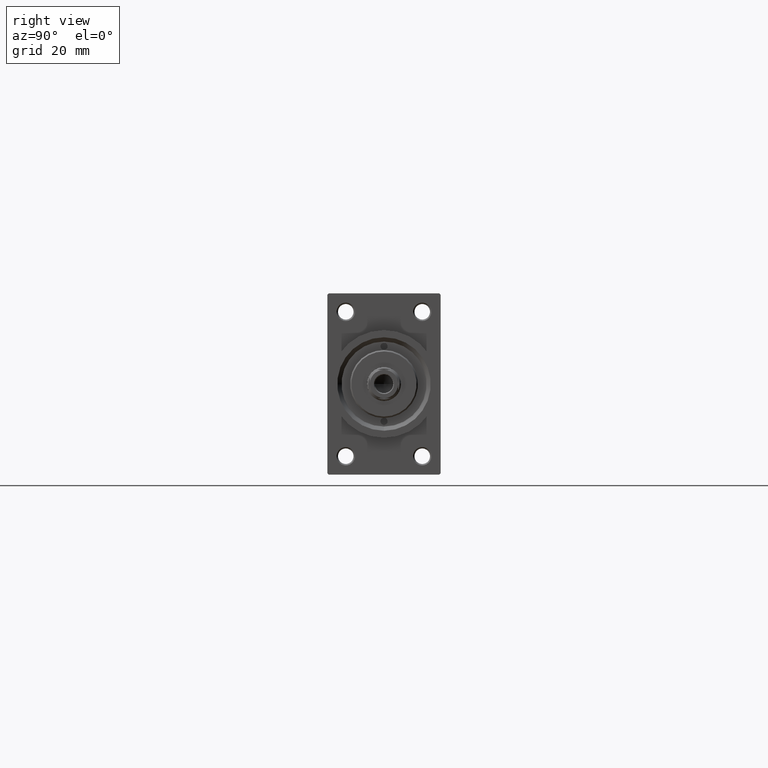
[diagram: clean part render]
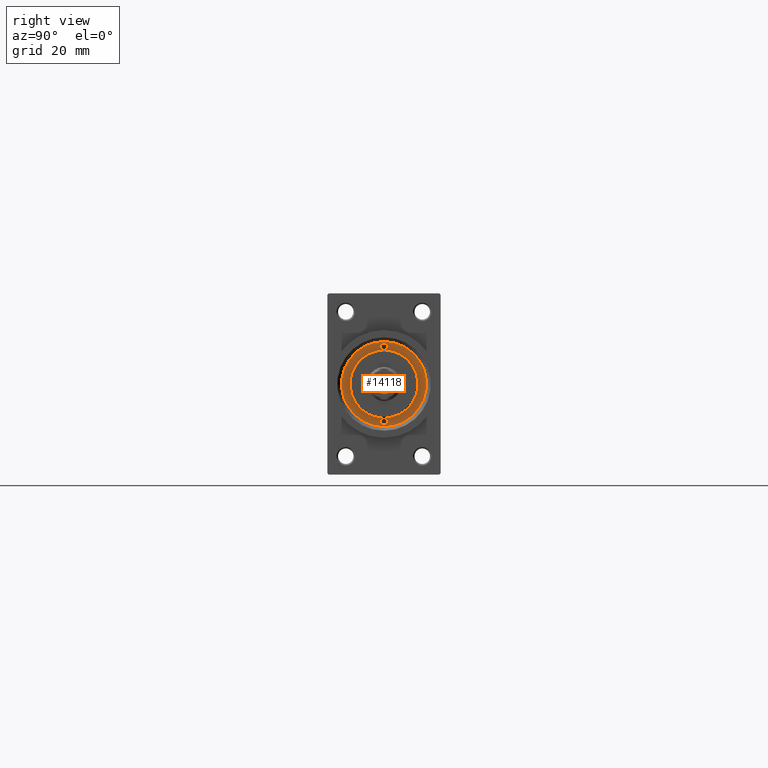
[diagram: same view with one face highlighted and labeled with its STEP entity id]
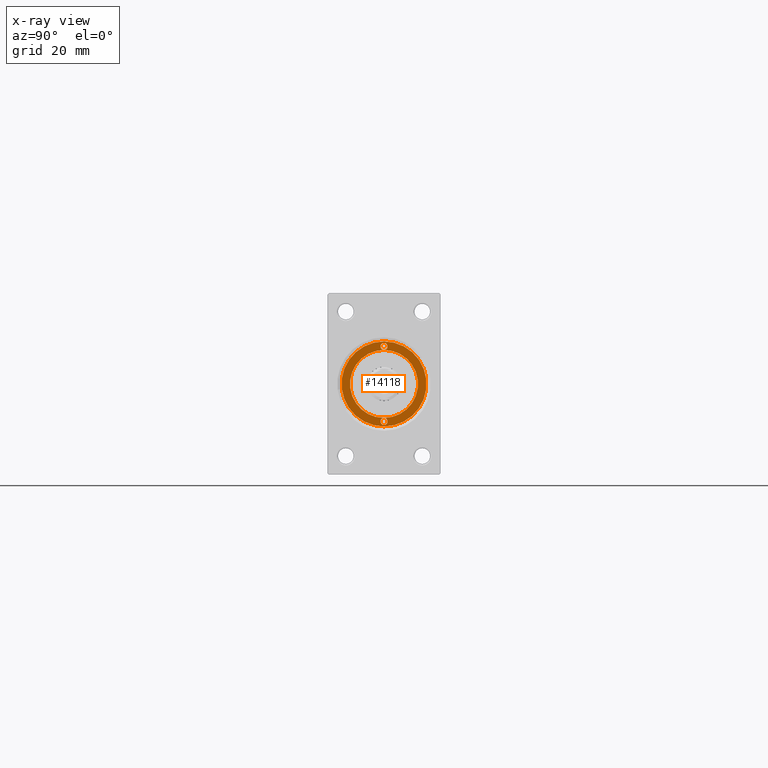
[diagram: x-ray of the same camera — body ghosted, the highlighted face saturated]
A machine part, right view. The second image highlights one B-rep face of the part: STEP entity #14118.
The next image is the same camera in x-ray: the body ghosted, the highlighted face saturated — about 0% of this face is hidden behind the body in this view.
In plain terms, the highlighted planar face has unit normal (1, -0, -0).
Its self-contained STEP definition (entity closure, byte-faithful):
#129 = ORIENTED_EDGE ( 'NONE', *, *, #45383, .F. ) ;
#817 = DIRECTION ( 'NONE',  ( 0.000000000000000000, 0.000000000000000000, 1.000000000000000000 ) ) ;
#1982 = DIRECTION ( 'NONE',  ( 1.000000000000000000, 0.000000000000000000, 0.000000000000000000 ) ) ;
#2408 = CARTESIAN_POINT ( 'NONE',  ( -13.25000000000000178, 0.000000000000000000, 43.25999999999999801 ) ) ;
#5222 = DIRECTION ( 'NONE',  ( 1.000000000000000000, 0.000000000000000000, -0.000000000000000000 ) ) ;
#5617 = EDGE_LOOP ( 'NONE', ( #20562, #22568, #129, #23749, #38273, #13560 ) ) ;
#6814 = AXIS2_PLACEMENT_3D ( 'NONE', #23896, #43004, #28430 ) ;
#8221 = DIRECTION ( 'NONE',  ( 1.000000000000000000, 0.000000000000000000, 0.000000000000000000 ) ) ;
#8575 = FACE_OUTER_BOUND ( 'NONE', #30302, .T. ) ;
#8637 = DIRECTION ( 'NONE',  ( 1.000000000000000000, 0.000000000000000000, 0.000000000000000000 ) ) ;
#8684 = AXIS2_PLACEMENT_3D ( 'NONE', #38074, #42105, #8637 ) ;
#9688 = CARTESIAN_POINT ( 'NONE',  ( -15.00000000000000000, 0.000000000000000000, 43.25999999999999801 ) ) ;
#10221 = EDGE_CURVE ( 'NONE', #19502, #35439, #13085, .T. ) ;
#11510 = EDGE_CURVE ( 'NONE', #18126, #29995, #39888, .T. ) ;
#11653 = CARTESIAN_POINT ( 'NONE',  ( -14.50000000000000000, 1.530808498934191571E-16, 43.25999999999999801 ) ) ;
#13085 = CIRCLE ( 'NONE', #41389, 15.00000000000000000 ) ;
#13439 = CARTESIAN_POINT ( 'NONE',  ( 14.49999999999999822, 0.000000000000000000, 43.25999999999999801 ) ) ;
#13560 = ORIENTED_EDGE ( 'NONE', *, *, #41662, .F. ) ;
#14023 = AXIS2_PLACEMENT_3D ( 'NONE', #37780, #16441, #5222 ) ;
#14118 = ADVANCED_FACE ( 'NONE', ( #16208, #8575 ), #27232, .T. ) ;
#14479 = CARTESIAN_POINT ( 'NONE',  ( 0.000000000000000000, 0.000000000000000000, 43.25999999999999801 ) ) ;
#14949 = DIRECTION ( 'NONE',  ( 1.000000000000000000, 0.000000000000000000, 0.000000000000000000 ) ) ;
#16208 = FACE_BOUND ( 'NONE', #5617, .T. ) ;
#16441 = DIRECTION ( 'NONE',  ( 0.000000000000000000, 0.000000000000000000, 1.000000000000000000 ) ) ;
#16890 = ORIENTED_EDGE ( 'NONE', *, *, #10221, .T. ) ;
#17485 = CIRCLE ( 'NONE', #6814, 12.00000000000000178 ) ;
#18126 = VERTEX_POINT ( 'NONE', #13439 ) ;
#19244 = AXIS2_PLACEMENT_3D ( 'NONE', #20141, #34763, #1982 ) ;
#19502 = VERTEX_POINT ( 'NONE', #9688 ) ;
#19864 = CARTESIAN_POINT ( 'NONE',  ( 15.00000000000000000, 1.836970198721029589E-15, 43.25999999999999801 ) ) ;
#20110 = CIRCLE ( 'NONE', #8684, 1.249999999999999334 ) ;
#20141 = CARTESIAN_POINT ( 'NONE',  ( 13.25000000000000000, 0.000000000000000000, 43.25999999999999801 ) ) ;
#20562 = ORIENTED_EDGE ( 'NONE', *, *, #31526, .F. ) ;
#21200 = DIRECTION ( 'NONE',  ( 0.000000000000000000, 0.000000000000000000, 1.000000000000000000 ) ) ;
#21385 = CIRCLE ( 'NONE', #29094, 15.00000000000000000 ) ;
#22568 = ORIENTED_EDGE ( 'NONE', *, *, #35394, .F. ) ;
#23226 = VERTEX_POINT ( 'NONE', #28397 ) ;
#23749 = ORIENTED_EDGE ( 'NONE', *, *, #25786, .F. ) ;
#23896 = CARTESIAN_POINT ( 'NONE',  ( 0.000000000000000000, 0.000000000000000000, 43.25999999999999801 ) ) ;
#23944 = DIRECTION ( 'NONE',  ( -0.000000000000000000, -0.000000000000000000, 1.000000000000000000 ) ) ;
#24235 = CARTESIAN_POINT ( 'NONE',  ( 12.00000000000000178, 1.469576158976824144E-15, 43.25999999999999801 ) ) ;
#25786 = EDGE_CURVE ( 'NONE', #29995, #23226, #37193, .T. ) ;
#26792 = CIRCLE ( 'NONE', #29855, 1.249999999999999334 ) ;
#27232 = PLANE ( 'NONE',  #14023 ) ;
#27325 = VERTEX_POINT ( 'NONE', #11653 ) ;
#27547 = DIRECTION ( 'NONE',  ( 1.000000000000000000, 0.000000000000000000, 0.000000000000000000 ) ) ;
#28397 = CARTESIAN_POINT ( 'NONE',  ( -12.00000000000000178, 0.000000000000000000, 43.25999999999999801 ) ) ;
#28430 = DIRECTION ( 'NONE',  ( 1.000000000000000000, 0.000000000000000000, 0.000000000000000000 ) ) ;
#29094 = AXIS2_PLACEMENT_3D ( 'NONE', #41000, #817, #8221 ) ;
#29855 = AXIS2_PLACEMENT_3D ( 'NONE', #2408, #23944, #30909 ) ;
#29995 = VERTEX_POINT ( 'NONE', #24235 ) ;
#30302 = EDGE_LOOP ( 'NONE', ( #16890, #31577 ) ) ;
#30909 = DIRECTION ( 'NONE',  ( 1.000000000000000000, 0.000000000000000000, 0.000000000000000000 ) ) ;
#31526 = EDGE_CURVE ( 'NONE', #23226, #29995, #17485, .T. ) ;
#31577 = ORIENTED_EDGE ( 'NONE', *, *, #34506, .T. ) ;
#34221 = CARTESIAN_POINT ( 'NONE',  ( 0.000000000000000000, 0.000000000000000000, 43.25999999999999801 ) ) ;
#34506 = EDGE_CURVE ( 'NONE', #35439, #19502, #21385, .T. ) ;
#34691 = DIRECTION ( 'NONE',  ( 0.000000000000000000, 0.000000000000000000, 1.000000000000000000 ) ) ;
#34763 = DIRECTION ( 'NONE',  ( -0.000000000000000000, -0.000000000000000000, 1.000000000000000000 ) ) ;
#35394 = EDGE_CURVE ( 'NONE', #27325, #23226, #26792, .T. ) ;
#35439 = VERTEX_POINT ( 'NONE', #19864 ) ;
#37193 = CIRCLE ( 'NONE', #43288, 12.00000000000000178 ) ;
#37575 = DIRECTION ( 'NONE',  ( 1.000000000000000000, 0.000000000000000000, 0.000000000000000000 ) ) ;
#37780 = CARTESIAN_POINT ( 'NONE',  ( 0.000000000000000000, 0.000000000000000000, 43.25999999999999801 ) ) ;
#38074 = CARTESIAN_POINT ( 'NONE',  ( -13.25000000000000178, 0.000000000000000000, 43.25999999999999801 ) ) ;
#38090 = DIRECTION ( 'NONE',  ( -0.000000000000000000, -0.000000000000000000, 1.000000000000000000 ) ) ;
#38273 = ORIENTED_EDGE ( 'NONE', *, *, #11510, .F. ) ;
#38434 = AXIS2_PLACEMENT_3D ( 'NONE', #42365, #38090, #27547 ) ;
#39888 = CIRCLE ( 'NONE', #19244, 1.249999999999999334 ) ;
#41000 = CARTESIAN_POINT ( 'NONE',  ( 0.000000000000000000, 0.000000000000000000, 43.25999999999999801 ) ) ;
#41389 = AXIS2_PLACEMENT_3D ( 'NONE', #14479, #21200, #14949 ) ;
#41662 = EDGE_CURVE ( 'NONE', #29995, #18126, #46825, .T. ) ;
#42105 = DIRECTION ( 'NONE',  ( -0.000000000000000000, -0.000000000000000000, 1.000000000000000000 ) ) ;
#42365 = CARTESIAN_POINT ( 'NONE',  ( 13.25000000000000000, 0.000000000000000000, 43.25999999999999801 ) ) ;
#43004 = DIRECTION ( 'NONE',  ( 0.000000000000000000, 0.000000000000000000, 1.000000000000000000 ) ) ;
#43288 = AXIS2_PLACEMENT_3D ( 'NONE', #34221, #34691, #37575 ) ;
#45383 = EDGE_CURVE ( 'NONE', #23226, #27325, #20110, .T. ) ;
#46825 = CIRCLE ( 'NONE', #38434, 1.249999999999999334 ) ;